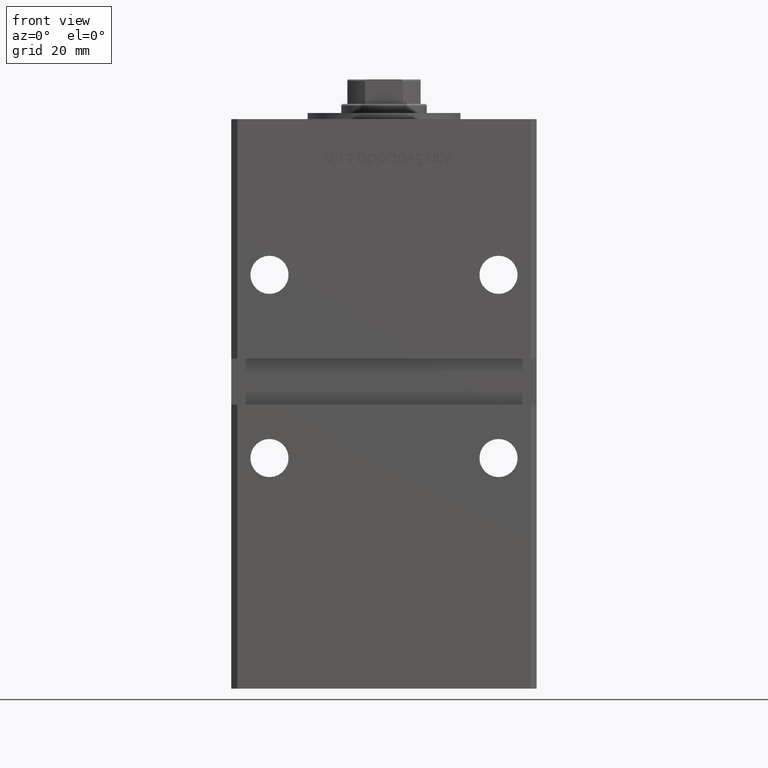
[diagram: clean part render]
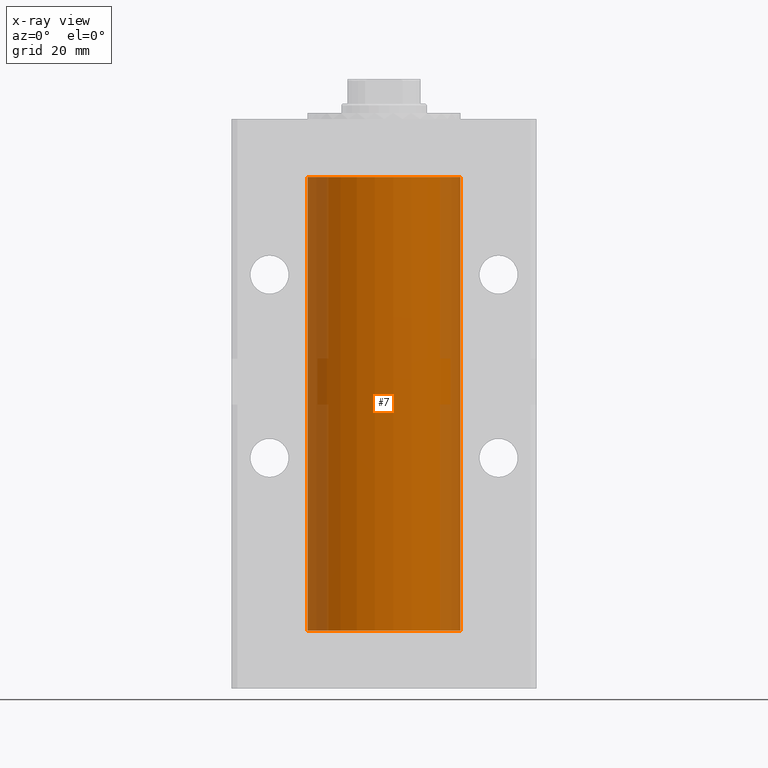
[diagram: x-ray — body ghosted, one internal face saturated and labeled with its STEP entity id]
A machine part, front view, then the same camera in x-ray: the body is ghosted and one INTERNAL B-rep face — a face not visible from any outside direction — is saturated and labeled: STEP entity #7.
In plain terms, the highlighted cylindrical surface (partial cylindrical patch) has radius 25 mm, axis along (-0, -0, -1).
Its self-contained STEP definition (entity closure, byte-faithful):
#7 = ADVANCED_FACE ( 'NONE', ( #11036 ), #22084, .F. ) ;
#3491 = DIRECTION ( 'NONE',  ( -0.000000000000000000, 0.000000000000000000, 1.000000000000000000 ) ) ;
#3874 = ORIENTED_EDGE ( 'NONE', *, *, #40392, .T. ) ;
#4224 = DIRECTION ( 'NONE',  ( 1.000000000000000000, 0.000000000000000000, 0.000000000000000000 ) ) ;
#4269 = LINE ( 'NONE', #33051, #31313 ) ;
#9954 = EDGE_CURVE ( 'NONE', #37160, #33200, #11019, .T. ) ;
#11019 = CIRCLE ( 'NONE', #25627, 25.00000000000000000 ) ;
#11036 = FACE_OUTER_BOUND ( 'NONE', #23532, .T. ) ;
#12327 = ORIENTED_EDGE ( 'NONE', *, *, #43477, .T. ) ;
#14040 = VERTEX_POINT ( 'NONE', #25500 ) ;
#17490 = CIRCLE ( 'NONE', #22639, 25.00000000000000000 ) ;
#18501 = EDGE_CURVE ( 'NONE', #14040, #37160, #43455, .T. ) ;
#22084 = CYLINDRICAL_SURFACE ( 'NONE', #40119, 25.00000000000000000 ) ;
#22639 = AXIS2_PLACEMENT_3D ( 'NONE', #27443, #3491, #31740 ) ;
#23532 = EDGE_LOOP ( 'NONE', ( #3874, #12327, #48910, #30391 ) ) ;
#25500 = CARTESIAN_POINT ( 'NONE',  ( -25.00000000000000000, 0.000000000000000000, 148.5000000000000000 ) ) ;
#25627 = AXIS2_PLACEMENT_3D ( 'NONE', #33010, #33271, #4224 ) ;
#26394 = DIRECTION ( 'NONE',  ( -0.000000000000000000, -0.000000000000000000, -1.000000000000000000 ) ) ;
#27443 = CARTESIAN_POINT ( 'NONE',  ( 0.000000000000000000, 0.000000000000000000, 148.5000000000000000 ) ) ;
#28218 = DIRECTION ( 'NONE',  ( -0.000000000000000000, -0.000000000000000000, -1.000000000000000000 ) ) ;
#30391 = ORIENTED_EDGE ( 'NONE', *, *, #18501, .F. ) ;
#30796 = VERTEX_POINT ( 'NONE', #45985 ) ;
#31222 = CARTESIAN_POINT ( 'NONE',  ( 0.000000000000000000, 0.000000000000000000, 148.5000000000000000 ) ) ;
#31313 = VECTOR ( 'NONE', #28218, 1000.000000000000000 ) ;
#31740 = DIRECTION ( 'NONE',  ( 1.000000000000000000, 0.000000000000000000, 0.000000000000000000 ) ) ;
#33010 = CARTESIAN_POINT ( 'NONE',  ( 0.000000000000000000, 0.000000000000000000, 0.000000000000000000 ) ) ;
#33051 = CARTESIAN_POINT ( 'NONE',  ( 25.00000000000000000, 3.061616997868383043E-15, 148.5000000000000000 ) ) ;
#33200 = VERTEX_POINT ( 'NONE', #44040 ) ;
#33271 = DIRECTION ( 'NONE',  ( -0.000000000000000000, 0.000000000000000000, 1.000000000000000000 ) ) ;
#35390 = CARTESIAN_POINT ( 'NONE',  ( -25.00000000000000000, 0.000000000000000000, 148.5000000000000000 ) ) ;
#37160 = VERTEX_POINT ( 'NONE', #45950 ) ;
#37606 = VECTOR ( 'NONE', #48279, 1000.000000000000000 ) ;
#38513 = DIRECTION ( 'NONE',  ( -1.000000000000000000, 0.000000000000000000, 0.000000000000000000 ) ) ;
#40119 = AXIS2_PLACEMENT_3D ( 'NONE', #31222, #26394, #38513 ) ;
#40392 = EDGE_CURVE ( 'NONE', #14040, #30796, #17490, .T. ) ;
#43455 = LINE ( 'NONE', #35390, #37606 ) ;
#43477 = EDGE_CURVE ( 'NONE', #30796, #33200, #4269, .T. ) ;
#44040 = CARTESIAN_POINT ( 'NONE',  ( 25.00000000000000000, 3.061616997868383043E-15, 0.000000000000000000 ) ) ;
#45950 = CARTESIAN_POINT ( 'NONE',  ( -25.00000000000000000, 0.000000000000000000, 0.000000000000000000 ) ) ;
#45985 = CARTESIAN_POINT ( 'NONE',  ( 25.00000000000000000, 3.061616997868383043E-15, 148.5000000000000000 ) ) ;
#48279 = DIRECTION ( 'NONE',  ( -0.000000000000000000, -0.000000000000000000, -1.000000000000000000 ) ) ;
#48910 = ORIENTED_EDGE ( 'NONE', *, *, #9954, .F. ) ;